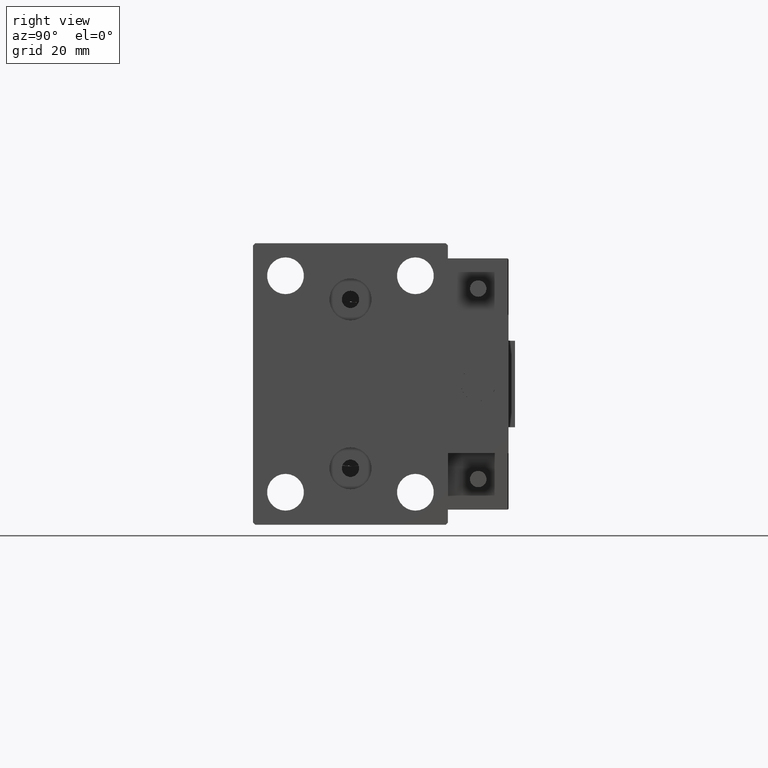
[diagram: clean part render]
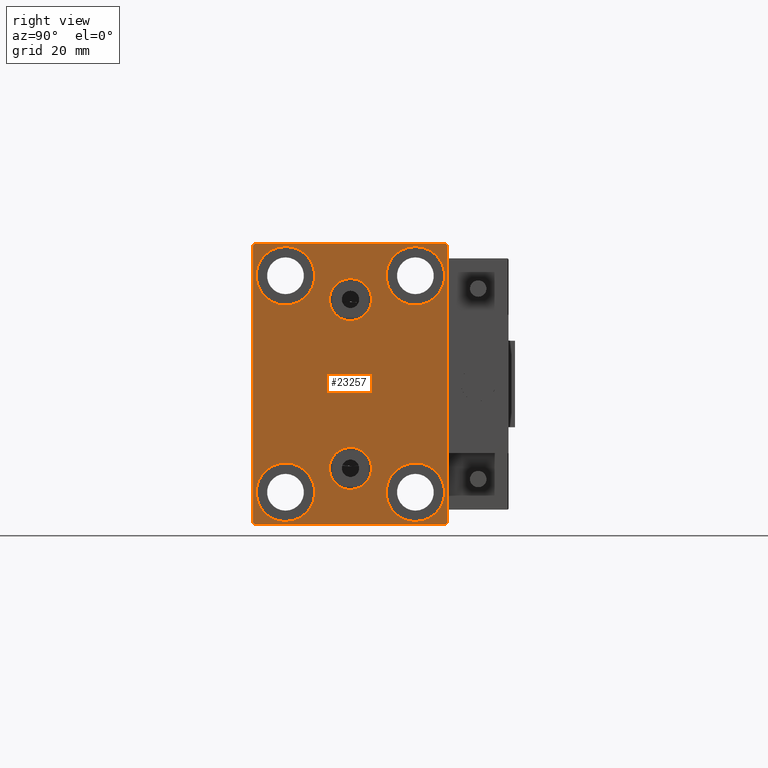
[diagram: same view with one face highlighted and labeled with its STEP entity id]
A machine part, right view. The second image highlights one B-rep face of the part: STEP entity #23257.
In plain terms, the highlighted planar face has unit normal (1, 0, 0).
Its self-contained STEP definition (entity closure, byte-faithful):
#177 = CARTESIAN_POINT ( 'NONE',  ( 70.00000000000000000, -15.00000000000000355, -18.25000000000000355 ) ) ;
#207 = ORIENTED_EDGE ( 'NONE', *, *, #37841, .T. ) ;
#272 = CARTESIAN_POINT ( 'NONE',  ( 70.00000000000000000, 27.25000000000014921, 27.24999999999976907 ) ) ;
#331 = DIRECTION ( 'NONE',  ( 0.000000000000000000, 0.000000000000000000, 1.000000000000000000 ) ) ;
#413 = VERTEX_POINT ( 'NONE', #17567 ) ;
#733 = CIRCLE ( 'NONE', #25828, 4.859999999999999432 ) ;
#759 = CARTESIAN_POINT ( 'NONE',  ( 70.00000000000000000, 14.99999999999999645, -25.00000000000000000 ) ) ;
#834 = ORIENTED_EDGE ( 'NONE', *, *, #11080, .T. ) ;
#926 = EDGE_CURVE ( 'NONE', #23672, #18431, #27117, .T. ) ;
#1235 = AXIS2_PLACEMENT_3D ( 'NONE', #16802, #13015, #331 ) ;
#1278 = DIRECTION ( 'NONE',  ( -0.000000000000000000, 0.7071067811865378028, -0.7071067811865573427 ) ) ;
#1383 = EDGE_CURVE ( 'NONE', #18431, #23672, #5255, .T. ) ;
#1728 = EDGE_LOOP ( 'NONE', ( #42955, #18803 ) ) ;
#2314 = DIRECTION ( 'NONE',  ( 0.000000000000000000, 1.000000000000000000, 0.000000000000000000 ) ) ;
#2575 = DIRECTION ( 'NONE',  ( 0.000000000000000000, 0.000000000000000000, 1.000000000000000000 ) ) ;
#2778 = ORIENTED_EDGE ( 'NONE', *, *, #25281, .T. ) ;
#2845 = CARTESIAN_POINT ( 'NONE',  ( 70.00000000000000000, 22.00000000000001421, -32.50000000000000711 ) ) ;
#3172 = DIRECTION ( 'NONE',  ( -1.000000000000000000, -0.000000000000000000, -0.000000000000000000 ) ) ;
#3234 = CIRCLE ( 'NONE', #10511, 6.749999999999999112 ) ;
#3318 = FACE_BOUND ( 'NONE', #10274, .T. ) ;
#3534 = CARTESIAN_POINT ( 'NONE',  ( 70.00000000000000000, 14.99999999999999645, -31.75000000000000000 ) ) ;
#3727 = CARTESIAN_POINT ( 'NONE',  ( 70.00000000000000000, 2.388061258337338150E-15, -19.49999999999999645 ) ) ;
#3869 = VECTOR ( 'NONE', #1278, 1000.000000000000000 ) ;
#3903 = AXIS2_PLACEMENT_3D ( 'NONE', #3727, #29623, #45101 ) ;
#3966 = DIRECTION ( 'NONE',  ( 0.000000000000000000, -1.067522139062650425E-16, 1.000000000000000000 ) ) ;
#4007 = CARTESIAN_POINT ( 'NONE',  ( 70.00000000000000000, 22.49999999999999289, 31.99999999999999289 ) ) ;
#4277 = CARTESIAN_POINT ( 'NONE',  ( 70.00000000000000000, -15.00000000000000355, -25.00000000000000000 ) ) ;
#4304 = DIRECTION ( 'NONE',  ( 0.000000000000000000, 0.000000000000000000, 1.000000000000000000 ) ) ;
#4389 = DIRECTION ( 'NONE',  ( 0.000000000000000000, 0.000000000000000000, 1.000000000000000000 ) ) ;
#5255 = CIRCLE ( 'NONE', #1235, 6.749999999999999112 ) ;
#5590 = EDGE_CURVE ( 'NONE', #21483, #14521, #12684, .T. ) ;
#6155 = EDGE_CURVE ( 'NONE', #43936, #16356, #18841, .T. ) ;
#6487 = AXIS2_PLACEMENT_3D ( 'NONE', #22776, #41553, #17728 ) ;
#7045 = LINE ( 'NONE', #42757, #41903 ) ;
#7201 = VECTOR ( 'NONE', #43802, 1000.000000000000114 ) ;
#7418 = AXIS2_PLACEMENT_3D ( 'NONE', #16704, #31419, #47638 ) ;
#7517 = ORIENTED_EDGE ( 'NONE', *, *, #6155, .T. ) ;
#8528 = VECTOR ( 'NONE', #24074, 1000.000000000000114 ) ;
#8566 = EDGE_CURVE ( 'NONE', #16356, #26230, #36761, .T. ) ;
#8657 = CARTESIAN_POINT ( 'NONE',  ( 70.00000000000000000, -27.25000000000032330, -27.24999999999957012 ) ) ;
#8860 = AXIS2_PLACEMENT_3D ( 'NONE', #26157, #37314, #2575 ) ;
#9031 = CIRCLE ( 'NONE', #7418, 6.749999999999999112 ) ;
#9217 = ORIENTED_EDGE ( 'NONE', *, *, #926, .T. ) ;
#9811 = DIRECTION ( 'NONE',  ( 0.000000000000000000, 0.000000000000000000, -1.000000000000000000 ) ) ;
#10265 = ORIENTED_EDGE ( 'NONE', *, *, #35998, .T. ) ;
#10274 = EDGE_LOOP ( 'NONE', ( #12139, #10664 ) ) ;
#10398 = EDGE_CURVE ( 'NONE', #31822, #30151, #733, .T. ) ;
#10511 = AXIS2_PLACEMENT_3D ( 'NONE', #22466, #30085, #48355 ) ;
#10527 = ORIENTED_EDGE ( 'NONE', *, *, #45260, .F. ) ;
#10664 = ORIENTED_EDGE ( 'NONE', *, *, #11172, .T. ) ;
#11080 = EDGE_CURVE ( 'NONE', #26230, #14504, #44165, .T. ) ;
#11172 = EDGE_CURVE ( 'NONE', #413, #13368, #20163, .T. ) ;
#11700 = CARTESIAN_POINT ( 'NONE',  ( 70.00000000000000000, -14.99999999999999645, 18.25000000000000355 ) ) ;
#12139 = ORIENTED_EDGE ( 'NONE', *, *, #44735, .T. ) ;
#12204 = ORIENTED_EDGE ( 'NONE', *, *, #13319, .T. ) ;
#12460 = ORIENTED_EDGE ( 'NONE', *, *, #33845, .T. ) ;
#12681 = AXIS2_PLACEMENT_3D ( 'NONE', #23677, #39130, #4389 ) ;
#12684 = CIRCLE ( 'NONE', #18370, 6.749999999999999112 ) ;
#13015 = DIRECTION ( 'NONE',  ( -1.000000000000000000, -0.000000000000000000, -0.000000000000000000 ) ) ;
#13319 = EDGE_CURVE ( 'NONE', #13569, #31970, #31457, .T. ) ;
#13334 = ORIENTED_EDGE ( 'NONE', *, *, #10398, .F. ) ;
#13368 = VERTEX_POINT ( 'NONE', #44124 ) ;
#13569 = VERTEX_POINT ( 'NONE', #4007 ) ;
#14303 = CARTESIAN_POINT ( 'NONE',  ( 70.00000000000000000, -22.00000000000002132, -32.50000000000000711 ) ) ;
#14490 = DIRECTION ( 'NONE',  ( 1.000000000000000000, 0.000000000000000000, 0.000000000000000000 ) ) ;
#14504 = VERTEX_POINT ( 'NONE', #2845 ) ;
#14521 = VERTEX_POINT ( 'NONE', #33764 ) ;
#14574 = ORIENTED_EDGE ( 'NONE', *, *, #23325, .T. ) ;
#14963 = FACE_BOUND ( 'NONE', #16600, .T. ) ;
#15734 = DIRECTION ( 'NONE',  ( -0.000000000000000000, -0.7071067811865425767, 0.7071067811865525687 ) ) ;
#16356 = VERTEX_POINT ( 'NONE', #29176 ) ;
#16600 = EDGE_LOOP ( 'NONE', ( #13334, #10527 ) ) ;
#16704 = CARTESIAN_POINT ( 'NONE',  ( 70.00000000000000000, 15.00000000000000355, 25.00000000000000000 ) ) ;
#16802 = CARTESIAN_POINT ( 'NONE',  ( 70.00000000000000000, -15.00000000000000355, -25.00000000000000000 ) ) ;
#17567 = CARTESIAN_POINT ( 'NONE',  ( 70.00000000000000000, 15.00000000000000355, 31.75000000000000000 ) ) ;
#17728 = DIRECTION ( 'NONE',  ( 0.000000000000000000, 0.000000000000000000, 1.000000000000000000 ) ) ;
#18370 = AXIS2_PLACEMENT_3D ( 'NONE', #759, #30935, #4304 ) ;
#18393 = CARTESIAN_POINT ( 'NONE',  ( 70.00000000000000000, -14.99999999999999645, 25.00000000000000000 ) ) ;
#18431 = VERTEX_POINT ( 'NONE', #42607 ) ;
#18803 = ORIENTED_EDGE ( 'NONE', *, *, #49758, .F. ) ;
#18841 = LINE ( 'NONE', #34289, #47531 ) ;
#18862 = VERTEX_POINT ( 'NONE', #39751 ) ;
#19068 = AXIS2_PLACEMENT_3D ( 'NONE', #18393, #3172, #26010 ) ;
#19074 = VECTOR ( 'NONE', #31488, 1000.000000000000000 ) ;
#19288 = CIRCLE ( 'NONE', #3903, 4.859999999999999432 ) ;
#19381 = CARTESIAN_POINT ( 'NONE',  ( 70.00000000000000000, 22.50000000000000000, -32.00000000000002132 ) ) ;
#19586 = LINE ( 'NONE', #43157, #19074 ) ;
#19851 = EDGE_LOOP ( 'NONE', ( #29841, #9217 ) ) ;
#20163 = CIRCLE ( 'NONE', #8860, 6.749999999999999112 ) ;
#20600 = ORIENTED_EDGE ( 'NONE', *, *, #27557, .T. ) ;
#21180 = VERTEX_POINT ( 'NONE', #11700 ) ;
#21483 = VERTEX_POINT ( 'NONE', #3534 ) ;
#21583 = CARTESIAN_POINT ( 'NONE',  ( 70.00000000000000000, -22.50000000000000711, -32.50000000000000711 ) ) ;
#21745 = VERTEX_POINT ( 'NONE', #19381 ) ;
#21754 = CARTESIAN_POINT ( 'NONE',  ( 70.00000000000000000, -22.50000000000000711, 31.99999999999999289 ) ) ;
#22466 = CARTESIAN_POINT ( 'NONE',  ( 70.00000000000000000, 14.99999999999999645, -25.00000000000000000 ) ) ;
#22575 = FACE_BOUND ( 'NONE', #19851, .T. ) ;
#22776 = CARTESIAN_POINT ( 'NONE',  ( 70.00000000000000000, 2.388061258337338150E-15, -19.49999999999999645 ) ) ;
#23257 = ADVANCED_FACE ( 'NONE', ( #14963, #38524, #23322, #38782, #3318, #22575, #45657 ), #31176, .T. ) ;
#23322 = FACE_BOUND ( 'NONE', #32532, .T. ) ;
#23325 = EDGE_CURVE ( 'NONE', #18862, #43936, #35973, .T. ) ;
#23563 = DIRECTION ( 'NONE',  ( -1.000000000000000000, -0.000000000000000000, -0.000000000000000000 ) ) ;
#23672 = VERTEX_POINT ( 'NONE', #177 ) ;
#23677 = CARTESIAN_POINT ( 'NONE',  ( 70.00000000000000000, -14.99999999999999645, 25.00000000000000000 ) ) ;
#24074 = DIRECTION ( 'NONE',  ( 0.000000000000000000, -0.7071067811865474617, -0.7071067811865474617 ) ) ;
#24764 = LINE ( 'NONE', #43281, #7201 ) ;
#25281 = EDGE_CURVE ( 'NONE', #31970, #18862, #19586, .T. ) ;
#25828 = AXIS2_PLACEMENT_3D ( 'NONE', #33486, #14490, #29945 ) ;
#26010 = DIRECTION ( 'NONE',  ( 0.000000000000000000, 0.000000000000000000, 1.000000000000000000 ) ) ;
#26157 = CARTESIAN_POINT ( 'NONE',  ( 70.00000000000000000, 15.00000000000000355, 25.00000000000000000 ) ) ;
#26230 = VERTEX_POINT ( 'NONE', #14303 ) ;
#26648 = VECTOR ( 'NONE', #2314, 1000.000000000000000 ) ;
#26749 = EDGE_CURVE ( 'NONE', #26795, #21180, #28899, .T. ) ;
#26795 = VERTEX_POINT ( 'NONE', #39632 ) ;
#27117 = CIRCLE ( 'NONE', #44135, 6.749999999999999112 ) ;
#27530 = VERTEX_POINT ( 'NONE', #29305 ) ;
#27557 = EDGE_CURVE ( 'NONE', #21180, #26795, #34544, .T. ) ;
#28136 = CARTESIAN_POINT ( 'NONE',  ( 70.00000000000000000, -27.25000000000000000, 27.25000000000000000 ) ) ;
#28461 = AXIS2_PLACEMENT_3D ( 'NONE', #29061, #44534, #9811 ) ;
#28899 = CIRCLE ( 'NONE', #12681, 6.749999999999999112 ) ;
#29021 = CARTESIAN_POINT ( 'NONE',  ( 70.00000000000000000, 2.983239602722951428E-15, -14.63999999999999702 ) ) ;
#29061 = CARTESIAN_POINT ( 'NONE',  ( 70.00000000000000000, -3.571693674697836683E-15, 19.50000000000000355 ) ) ;
#29176 = CARTESIAN_POINT ( 'NONE',  ( 70.00000000000000000, -22.50000000000000711, -32.00000000000000711 ) ) ;
#29253 = CIRCLE ( 'NONE', #28461, 4.859999999999999432 ) ;
#29305 = CARTESIAN_POINT ( 'NONE',  ( 70.00000000000000000, 2.388061258337338150E-15, -24.35999999999999588 ) ) ;
#29623 = DIRECTION ( 'NONE',  ( 1.000000000000000000, 0.000000000000000000, -0.000000000000000000 ) ) ;
#29841 = ORIENTED_EDGE ( 'NONE', *, *, #1383, .T. ) ;
#29945 = DIRECTION ( 'NONE',  ( 0.000000000000000000, 0.000000000000000000, -1.000000000000000000 ) ) ;
#29970 = CIRCLE ( 'NONE', #6487, 4.859999999999999432 ) ;
#30085 = DIRECTION ( 'NONE',  ( -1.000000000000000000, -0.000000000000000000, -0.000000000000000000 ) ) ;
#30151 = VERTEX_POINT ( 'NONE', #41849 ) ;
#30251 = DIRECTION ( 'NONE',  ( 0.000000000000000000, 0.000000000000000000, -1.000000000000000000 ) ) ;
#30935 = DIRECTION ( 'NONE',  ( -1.000000000000000000, -0.000000000000000000, -0.000000000000000000 ) ) ;
#31176 = PLANE ( 'NONE',  #39268 ) ;
#31419 = DIRECTION ( 'NONE',  ( -1.000000000000000000, -0.000000000000000000, -0.000000000000000000 ) ) ;
#31457 = LINE ( 'NONE', #272, #44538 ) ;
#31488 = DIRECTION ( 'NONE',  ( 0.000000000000000000, -1.000000000000000000, -1.541976423090495387E-16 ) ) ;
#31822 = VERTEX_POINT ( 'NONE', #45451 ) ;
#31970 = VERTEX_POINT ( 'NONE', #46932 ) ;
#32532 = EDGE_LOOP ( 'NONE', ( #34362, #207 ) ) ;
#32640 = ORIENTED_EDGE ( 'NONE', *, *, #26749, .T. ) ;
#33486 = CARTESIAN_POINT ( 'NONE',  ( 70.00000000000000000, -3.571693674697836683E-15, 19.50000000000000355 ) ) ;
#33764 = CARTESIAN_POINT ( 'NONE',  ( 70.00000000000000000, 14.99999999999999645, -18.25000000000000355 ) ) ;
#33845 = EDGE_CURVE ( 'NONE', #21745, #13569, #7045, .T. ) ;
#34289 = CARTESIAN_POINT ( 'NONE',  ( 70.00000000000000000, -22.50000000000000711, 32.49999999999999289 ) ) ;
#34362 = ORIENTED_EDGE ( 'NONE', *, *, #5590, .T. ) ;
#34544 = CIRCLE ( 'NONE', #19068, 6.749999999999999112 ) ;
#35973 = LINE ( 'NONE', #28136, #8528 ) ;
#35998 = EDGE_CURVE ( 'NONE', #14504, #21745, #24764, .T. ) ;
#36761 = LINE ( 'NONE', #8657, #3869 ) ;
#37314 = DIRECTION ( 'NONE',  ( -1.000000000000000000, -0.000000000000000000, -0.000000000000000000 ) ) ;
#37841 = EDGE_CURVE ( 'NONE', #14521, #21483, #3234, .T. ) ;
#38037 = DIRECTION ( 'NONE',  ( 0.000000000000000000, 0.000000000000000000, -1.000000000000000000 ) ) ;
#38524 = FACE_BOUND ( 'NONE', #1728, .T. ) ;
#38782 = FACE_BOUND ( 'NONE', #39123, .T. ) ;
#39123 = EDGE_LOOP ( 'NONE', ( #20600, #32640 ) ) ;
#39130 = DIRECTION ( 'NONE',  ( -1.000000000000000000, -0.000000000000000000, -0.000000000000000000 ) ) ;
#39268 = AXIS2_PLACEMENT_3D ( 'NONE', #46646, #45900, #38037 ) ;
#39632 = CARTESIAN_POINT ( 'NONE',  ( 70.00000000000000000, -14.99999999999999645, 31.75000000000000000 ) ) ;
#39751 = CARTESIAN_POINT ( 'NONE',  ( 70.00000000000000000, -21.99999999999999289, 32.49999999999999289 ) ) ;
#41553 = DIRECTION ( 'NONE',  ( 1.000000000000000000, 0.000000000000000000, -0.000000000000000000 ) ) ;
#41849 = CARTESIAN_POINT ( 'NONE',  ( 70.00000000000000000, -2.976515330312223406E-15, 24.36000000000000298 ) ) ;
#41903 = VECTOR ( 'NONE', #3966, 1000.000000000000000 ) ;
#41904 = EDGE_CURVE ( 'NONE', #27530, #43206, #29970, .T. ) ;
#42607 = CARTESIAN_POINT ( 'NONE',  ( 70.00000000000000000, -15.00000000000000355, -31.75000000000000000 ) ) ;
#42757 = CARTESIAN_POINT ( 'NONE',  ( 70.00000000000000000, 22.50000000000000000, -32.50000000000000711 ) ) ;
#42955 = ORIENTED_EDGE ( 'NONE', *, *, #41904, .F. ) ;
#43157 = CARTESIAN_POINT ( 'NONE',  ( 70.00000000000000000, 22.49999999999999289, 32.50000000000000000 ) ) ;
#43206 = VERTEX_POINT ( 'NONE', #29021 ) ;
#43281 = CARTESIAN_POINT ( 'NONE',  ( 70.00000000000000000, 27.25000000000032685, -27.24999999999957012 ) ) ;
#43802 = DIRECTION ( 'NONE',  ( -0.000000000000000000, 0.7071067811865376918, 0.7071067811865573427 ) ) ;
#43936 = VERTEX_POINT ( 'NONE', #21754 ) ;
#44124 = CARTESIAN_POINT ( 'NONE',  ( 70.00000000000000000, 15.00000000000000355, 18.25000000000000355 ) ) ;
#44135 = AXIS2_PLACEMENT_3D ( 'NONE', #4277, #23563, #45878 ) ;
#44165 = LINE ( 'NONE', #21583, #26648 ) ;
#44534 = DIRECTION ( 'NONE',  ( 1.000000000000000000, 0.000000000000000000, 0.000000000000000000 ) ) ;
#44538 = VECTOR ( 'NONE', #15734, 999.9999999999998863 ) ;
#44735 = EDGE_CURVE ( 'NONE', #13368, #413, #9031, .T. ) ;
#45101 = DIRECTION ( 'NONE',  ( 0.000000000000000000, 0.000000000000000000, 1.000000000000000000 ) ) ;
#45260 = EDGE_CURVE ( 'NONE', #30151, #31822, #29253, .T. ) ;
#45451 = CARTESIAN_POINT ( 'NONE',  ( 70.00000000000000000, -3.571693674697836683E-15, 14.64000000000000412 ) ) ;
#45657 = FACE_OUTER_BOUND ( 'NONE', #46670, .T. ) ;
#45878 = DIRECTION ( 'NONE',  ( 0.000000000000000000, 0.000000000000000000, 1.000000000000000000 ) ) ;
#45900 = DIRECTION ( 'NONE',  ( 1.000000000000000000, 0.000000000000000000, 0.000000000000000000 ) ) ;
#46646 = CARTESIAN_POINT ( 'NONE',  ( 70.00000000000000000, 0.000000000000000000, 0.000000000000000000 ) ) ;
#46670 = EDGE_LOOP ( 'NONE', ( #2778, #14574, #7517, #49006, #834, #10265, #12460, #12204 ) ) ;
#46932 = CARTESIAN_POINT ( 'NONE',  ( 70.00000000000000000, 21.99999999999999289, 32.50000000000000000 ) ) ;
#47531 = VECTOR ( 'NONE', #30251, 1000.000000000000000 ) ;
#47638 = DIRECTION ( 'NONE',  ( 0.000000000000000000, 0.000000000000000000, 1.000000000000000000 ) ) ;
#48355 = DIRECTION ( 'NONE',  ( 0.000000000000000000, 0.000000000000000000, 1.000000000000000000 ) ) ;
#49006 = ORIENTED_EDGE ( 'NONE', *, *, #8566, .T. ) ;
#49758 = EDGE_CURVE ( 'NONE', #43206, #27530, #19288, .T. ) ;